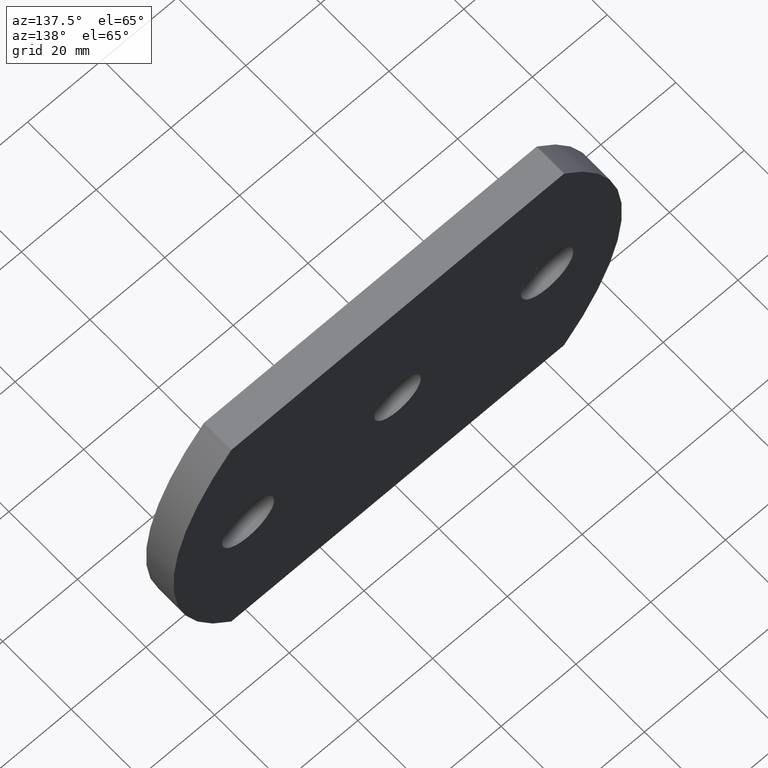
[diagram: clean part render]
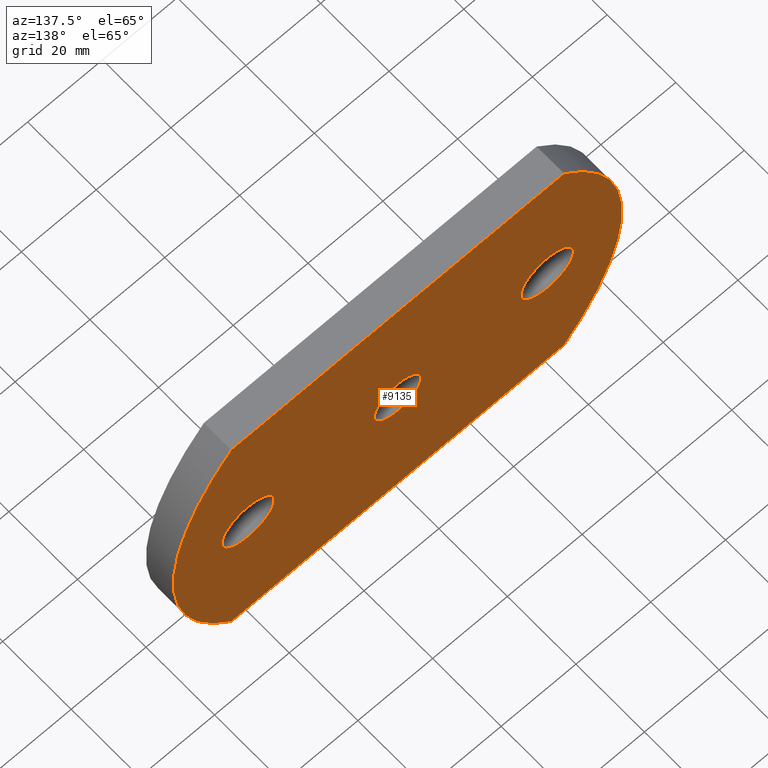
[diagram: same view with one face highlighted and labeled with its STEP entity id]
A machine part, auxiliary view. The second image highlights one B-rep face of the part: STEP entity #9135.
In plain terms, the highlighted planar face has unit normal (0, -1, 0).
Its self-contained STEP definition (entity closure, byte-faithful):
#100 = ORIENTED_EDGE ( 'NONE', *, *, #9290, .F. ) ;
#112 = DIRECTION ( 'NONE',  ( 0.0000000000000000000, 1.000000000000000000, 0.0000000000000000000 ) ) ;
#185 = ORIENTED_EDGE ( 'NONE', *, *, #505, .F. ) ;
#430 = DIRECTION ( 'NONE',  ( 0.0000000000000000000, -1.000000000000000000, 0.0000000000000000000 ) ) ;
#444 = FACE_OUTER_BOUND ( 'NONE', #6150, .T. ) ;
#505 = EDGE_CURVE ( 'NONE', #6568, #7712, #629, .T. ) ;
#629 = CIRCLE ( 'NONE', #9073, 6.250000000000000000 ) ;
#1210 = CARTESIAN_POINT ( 'NONE',  ( 44.50000000000002800, 8.000000000000000000, -40.00000000000000700 ) ) ;
#1683 = CARTESIAN_POINT ( 'NONE',  ( 40.00000000000000000, 8.000000000000000000, 0.0000000000000000000 ) ) ;
#2009 = CARTESIAN_POINT ( 'NONE',  ( -44.49999999999994300, 8.000000000000000000, 40.00000000000000700 ) ) ;
#2100 = CARTESIAN_POINT ( 'NONE',  ( -40.00000000000000000, 8.000000000000000000, 0.0000000000000000000 ) ) ;
#2124 = AXIS2_PLACEMENT_3D ( 'NONE', #6210, #9520, #4753 ) ;
#2240 = DIRECTION ( 'NONE',  ( 0.0000000000000000000, 1.000000000000000000, 0.0000000000000000000 ) ) ;
#2309 = ORIENTED_EDGE ( 'NONE', *, *, #7195, .F. ) ;
#2424 = VECTOR ( 'NONE', #4799, 1000.000000000000000 ) ;
#2431 = FACE_BOUND ( 'NONE', #6793, .T. ) ;
#2437 = CARTESIAN_POINT ( 'NONE',  ( 40.00000000000000000, 8.000000000000000000, 0.0000000000000000000 ) ) ;
#2544 = FACE_BOUND ( 'NONE', #7890, .T. ) ;
#2573 = VERTEX_POINT ( 'NONE', #2009 ) ;
#2864 = CARTESIAN_POINT ( 'NONE',  ( -44.49999999999996400, 8.000000000000000000, -40.00000000000000000 ) ) ;
#2881 = EDGE_CURVE ( 'NONE', #7712, #6568, #5852, .T. ) ;
#2930 = DIRECTION ( 'NONE',  ( 0.0000000000000000000, 0.0000000000000000000, 1.000000000000000000 ) ) ;
#2987 = CARTESIAN_POINT ( 'NONE',  ( 44.50000000000005700, 8.000000000000000000, 39.99999999999999300 ) ) ;
#3067 = CARTESIAN_POINT ( 'NONE',  ( 40.00000000000000000, 8.000000000000000000, 7.000000000000000000 ) ) ;
#3140 = ORIENTED_EDGE ( 'NONE', *, *, #7568, .T. ) ;
#3155 = AXIS2_PLACEMENT_3D ( 'NONE', #8768, #3404, #5734 ) ;
#3164 = CIRCLE ( 'NONE', #2124, 7.000000000000000000 ) ;
#3273 = CARTESIAN_POINT ( 'NONE',  ( -44.49999999999994300, 8.000000000000000000, 40.00000000000000700 ) ) ;
#3331 = ORIENTED_EDGE ( 'NONE', *, *, #5804, .T. ) ;
#3404 = DIRECTION ( 'NONE',  ( 0.0000000000000000000, 1.000000000000000000, 0.0000000000000000000 ) ) ;
#3629 = AXIS2_PLACEMENT_3D ( 'NONE', #2100, #2240, #2930 ) ;
#3642 = DIRECTION ( 'NONE',  ( 0.0000000000000000000, 1.000000000000000000, 0.0000000000000000000 ) ) ;
#4275 = DIRECTION ( 'NONE',  ( 0.0000000000000000000, -0.0000000000000000000, -1.000000000000000000 ) ) ;
#4337 = CARTESIAN_POINT ( 'NONE',  ( 0.6370967741934421300, 8.000000000000000000, 0.0000000000000000000 ) ) ;
#4451 = EDGE_CURVE ( 'NONE', #9177, #7678, #7148, .T. ) ;
#4454 = AXIS2_PLACEMENT_3D ( 'NONE', #2437, #9403, #4755 ) ;
#4473 = DIRECTION ( 'NONE',  ( 0.0000000000000000000, 1.000000000000000000, -0.0000000000000000000 ) ) ;
#4555 = ORIENTED_EDGE ( 'NONE', *, *, #10088, .T. ) ;
#4593 = FACE_BOUND ( 'NONE', #8752, .T. ) ;
#4650 = CARTESIAN_POINT ( 'NONE',  ( 0.0000000000000000000, 8.000000000000000000, 6.250000000000000000 ) ) ;
#4655 = DIRECTION ( 'NONE',  ( 0.0000000000000000000, 1.000000000000000000, 0.0000000000000000000 ) ) ;
#4753 = DIRECTION ( 'NONE',  ( 0.0000000000000000000, 0.0000000000000000000, 1.000000000000000000 ) ) ;
#4755 = DIRECTION ( 'NONE',  ( 0.0000000000000000000, 0.0000000000000000000, 1.000000000000000000 ) ) ;
#4799 = DIRECTION ( 'NONE',  ( 1.000000000000000000, 0.0000000000000000000, -1.559302000878029000E-016 ) ) ;
#5109 = DIRECTION ( 'NONE',  ( 0.0000000000000000000, 0.0000000000000000000, 1.000000000000000000 ) ) ;
#5258 = ORIENTED_EDGE ( 'NONE', *, *, #4451, .F. ) ;
#5440 = AXIS2_PLACEMENT_3D ( 'NONE', #4337, #430, #4275 ) ;
#5489 = DIRECTION ( 'NONE',  ( 0.0000000000000000000, 0.0000000000000000000, 1.000000000000000000 ) ) ;
#5734 = DIRECTION ( 'NONE',  ( 0.0000000000000000000, 0.0000000000000000000, 1.000000000000000000 ) ) ;
#5784 = VERTEX_POINT ( 'NONE', #2864 ) ;
#5804 = EDGE_CURVE ( 'NONE', #7680, #9632, #7489, .T. ) ;
#5836 = DIRECTION ( 'NONE',  ( -1.000000000000000000, -0.0000000000000000000, 1.559302000878029000E-016 ) ) ;
#5852 = CIRCLE ( 'NONE', #3155, 6.250000000000000000 ) ;
#5874 = VERTEX_POINT ( 'NONE', #3067 ) ;
#5998 = ORIENTED_EDGE ( 'NONE', *, *, #9734, .T. ) ;
#6150 = EDGE_LOOP ( 'NONE', ( #3331, #3140, #4555, #5998 ) ) ;
#6210 = CARTESIAN_POINT ( 'NONE',  ( -40.00000000000000000, 8.000000000000000000, 0.0000000000000000000 ) ) ;
#6327 = ORIENTED_EDGE ( 'NONE', *, *, #2881, .F. ) ;
#6568 = VERTEX_POINT ( 'NONE', #7528 ) ;
#6793 = EDGE_LOOP ( 'NONE', ( #100, #5258 ) ) ;
#7008 = VECTOR ( 'NONE', #5836, 1000.000000000000000 ) ;
#7058 = CARTESIAN_POINT ( 'NONE',  ( -0.6370967741936434100, 8.000000000000000000, 0.0000000000000000000 ) ) ;
#7146 = CIRCLE ( 'NONE', #7937, 59.36290322580635600 ) ;
#7148 = CIRCLE ( 'NONE', #3629, 7.000000000000000000 ) ;
#7157 = CIRCLE ( 'NONE', #8703, 7.000000000000000000 ) ;
#7195 = EDGE_CURVE ( 'NONE', #9986, #5874, #7255, .T. ) ;
#7227 = ORIENTED_EDGE ( 'NONE', *, *, #9662, .F. ) ;
#7255 = CIRCLE ( 'NONE', #4454, 7.000000000000000000 ) ;
#7367 = PLANE ( 'NONE',  #5440 ) ;
#7468 = CARTESIAN_POINT ( 'NONE',  ( 40.00000000000000000, 8.000000000000000000, -7.000000000000000000 ) ) ;
#7489 = CIRCLE ( 'NONE', #9234, 59.36290322580656200 ) ;
#7528 = CARTESIAN_POINT ( 'NONE',  ( 7.654042494670957600E-016, 8.000000000000000000, -6.250000000000000000 ) ) ;
#7568 = EDGE_CURVE ( 'NONE', #9632, #5784, #9087, .T. ) ;
#7629 = DIRECTION ( 'NONE',  ( 0.0000000000000000000, 0.0000000000000000000, -1.000000000000000000 ) ) ;
#7678 = VERTEX_POINT ( 'NONE', #9868 ) ;
#7680 = VERTEX_POINT ( 'NONE', #2987 ) ;
#7712 = VERTEX_POINT ( 'NONE', #4650 ) ;
#7867 = DIRECTION ( 'NONE',  ( 0.0000000000000000000, 0.0000000000000000000, 1.000000000000000000 ) ) ;
#7890 = EDGE_LOOP ( 'NONE', ( #7227, #2309 ) ) ;
#7937 = AXIS2_PLACEMENT_3D ( 'NONE', #7058, #4655, #5489 ) ;
#8703 = AXIS2_PLACEMENT_3D ( 'NONE', #1683, #112, #7867 ) ;
#8752 = EDGE_LOOP ( 'NONE', ( #6327, #185 ) ) ;
#8768 = CARTESIAN_POINT ( 'NONE',  ( 0.0000000000000000000, 8.000000000000000000, 0.0000000000000000000 ) ) ;
#9073 = AXIS2_PLACEMENT_3D ( 'NONE', #9730, #3642, #5109 ) ;
#9087 = LINE ( 'NONE', #9726, #7008 ) ;
#9127 = LINE ( 'NONE', #3273, #2424 ) ;
#9135 = ADVANCED_FACE ( 'NONE', ( #2544, #2431, #4593, #444 ), #7367, .F. ) ;
#9157 = CARTESIAN_POINT ( 'NONE',  ( 0.6370967741934421300, 8.000000000000000000, 0.0000000000000000000 ) ) ;
#9177 = VERTEX_POINT ( 'NONE', #9802 ) ;
#9234 = AXIS2_PLACEMENT_3D ( 'NONE', #9157, #4473, #7629 ) ;
#9290 = EDGE_CURVE ( 'NONE', #7678, #9177, #3164, .T. ) ;
#9403 = DIRECTION ( 'NONE',  ( 0.0000000000000000000, 1.000000000000000000, 0.0000000000000000000 ) ) ;
#9520 = DIRECTION ( 'NONE',  ( 0.0000000000000000000, 1.000000000000000000, 0.0000000000000000000 ) ) ;
#9632 = VERTEX_POINT ( 'NONE', #1210 ) ;
#9662 = EDGE_CURVE ( 'NONE', #5874, #9986, #7157, .T. ) ;
#9726 = CARTESIAN_POINT ( 'NONE',  ( -44.49999999999997200, 8.000000000000000000, -39.99999999999999300 ) ) ;
#9730 = CARTESIAN_POINT ( 'NONE',  ( 0.0000000000000000000, 8.000000000000000000, 0.0000000000000000000 ) ) ;
#9734 = EDGE_CURVE ( 'NONE', #2573, #7680, #9127, .T. ) ;
#9802 = CARTESIAN_POINT ( 'NONE',  ( -40.00000000000000000, 8.000000000000000000, -7.000000000000000000 ) ) ;
#9868 = CARTESIAN_POINT ( 'NONE',  ( -40.00000000000000000, 8.000000000000000000, 7.000000000000000000 ) ) ;
#9986 = VERTEX_POINT ( 'NONE', #7468 ) ;
#10088 = EDGE_CURVE ( 'NONE', #5784, #2573, #7146, .T. ) ;